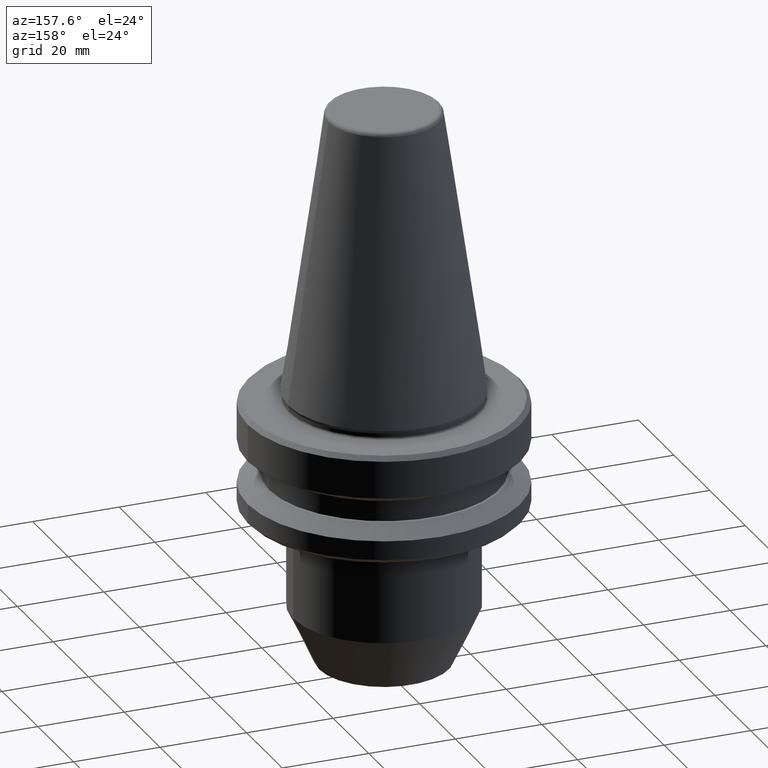
[diagram: clean part render]
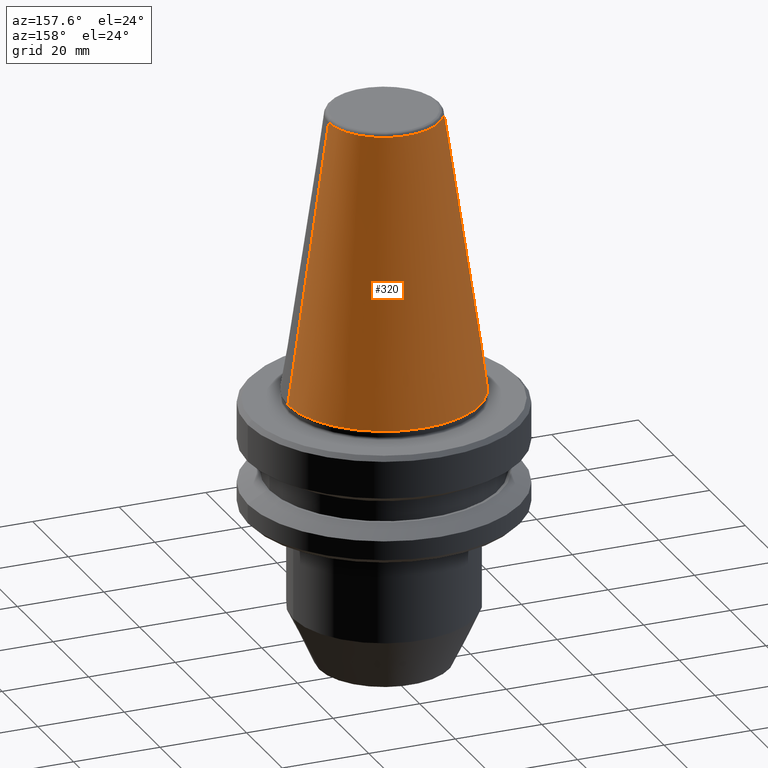
[diagram: same view with one face highlighted and labeled with its STEP entity id]
A machine part, auxiliary view. The second image highlights one B-rep face of the part: STEP entity #320.
In plain terms, the highlighted conical surface has half-angle 8.297 deg.
Its self-contained STEP definition (entity closure, byte-faithful):
#15 = CARTESIAN_POINT ( 'NONE',  ( 12.81220206925735800, 0.0000000000000000000, 64.54430818888884900 ) ) ;
#63 = ORIENTED_EDGE ( 'NONE', *, *, #847, .F. ) ;
#73 = CARTESIAN_POINT ( 'NONE',  ( -22.22499999999993700, 0.0000000000000000000, 0.0000000000000000000 ) ) ;
#85 = AXIS2_PLACEMENT_3D ( 'NONE', #319, #485, #452 ) ;
#126 = VERTEX_POINT ( 'NONE', #15 ) ;
#189 = VECTOR ( 'NONE', #939, 999.9999999999998900 ) ;
#225 = ORIENTED_EDGE ( 'NONE', *, *, #248, .T. ) ;
#227 = CARTESIAN_POINT ( 'NONE',  ( 0.0000000000000000000, 0.0000000000000000000, 0.0000000000000000000 ) ) ;
#246 = DIRECTION ( 'NONE',  ( -1.000000000000000000, 0.0000000000000000000, 0.0000000000000000000 ) ) ;
#248 = EDGE_CURVE ( 'NONE', #126, #648, #565, .T. ) ;
#253 = VECTOR ( 'NONE', #363, 999.9999999999998900 ) ;
#296 = AXIS2_PLACEMENT_3D ( 'NONE', #227, #615, #957 ) ;
#319 = CARTESIAN_POINT ( 'NONE',  ( 0.0000000000000000000, 0.0000000000000000000, 64.54430818888884900 ) ) ;
#320 = ADVANCED_FACE ( 'NONE', ( #1032 ), #735, .T. ) ;
#330 = CARTESIAN_POINT ( 'NONE',  ( 22.22499999999993700, 0.0000000000000000000, 0.0000000000000000000 ) ) ;
#339 = CARTESIAN_POINT ( 'NONE',  ( 22.22499999999993700, 2.721777511104985000E-015, 0.0000000000000000000 ) ) ;
#356 = DIRECTION ( 'NONE',  ( 0.0000000000000000000, 0.0000000000000000000, -1.000000000000000000 ) ) ;
#363 = DIRECTION ( 'NONE',  ( -0.1443081888881784800, 0.0000000000000000000, -0.9895327920891828800 ) ) ;
#393 = EDGE_CURVE ( 'NONE', #682, #844, #900, .T. ) ;
#452 = DIRECTION ( 'NONE',  ( 1.000000000000000000, 0.0000000000000000000, 0.0000000000000000000 ) ) ;
#485 = DIRECTION ( 'NONE',  ( -0.0000000000000000000, -0.0000000000000000000, 1.000000000000000000 ) ) ;
#549 = CARTESIAN_POINT ( 'NONE',  ( -12.81220206925735800, 1.569042225414511800E-015, 64.54430818888884900 ) ) ;
#565 = LINE ( 'NONE', #339, #189 ) ;
#615 = DIRECTION ( 'NONE',  ( -0.0000000000000000000, -0.0000000000000000000, 1.000000000000000000 ) ) ;
#629 = ORIENTED_EDGE ( 'NONE', *, *, #934, .T. ) ;
#648 = VERTEX_POINT ( 'NONE', #330 ) ;
#682 = VERTEX_POINT ( 'NONE', #549 ) ;
#692 = CARTESIAN_POINT ( 'NONE',  ( -22.22499999999993700, 2.721777511104985000E-015, 0.0000000000000000000 ) ) ;
#734 = CIRCLE ( 'NONE', #85, 12.81220206925737200 ) ;
#735 = CONICAL_SURFACE ( 'NONE', #1026, 22.22499999999993700, 0.1448138077623186700 ) ;
#833 = CARTESIAN_POINT ( 'NONE',  ( 0.0000000000000000000, 0.0000000000000000000, 0.0000000000000000000 ) ) ;
#844 = VERTEX_POINT ( 'NONE', #692 ) ;
#847 = EDGE_CURVE ( 'NONE', #126, #682, #734, .T. ) ;
#874 = CIRCLE ( 'NONE', #296, 22.22499999999993700 ) ;
#900 = LINE ( 'NONE', #73, #253 ) ;
#934 = EDGE_CURVE ( 'NONE', #648, #844, #874, .T. ) ;
#939 = DIRECTION ( 'NONE',  ( 0.1443081888881784800, 1.767265616126594100E-017, -0.9895327920891828800 ) ) ;
#957 = DIRECTION ( 'NONE',  ( 1.000000000000000000, 0.0000000000000000000, 0.0000000000000000000 ) ) ;
#1015 = EDGE_LOOP ( 'NONE', ( #63, #225, #629, #1046 ) ) ;
#1026 = AXIS2_PLACEMENT_3D ( 'NONE', #833, #356, #246 ) ;
#1032 = FACE_OUTER_BOUND ( 'NONE', #1015, .T. ) ;
#1046 = ORIENTED_EDGE ( 'NONE', *, *, #393, .F. ) ;